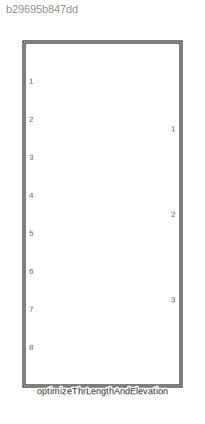
MODEL slx_b29695b847dd
KIND library
CONFIG AbsTol = auto
CONFIG EnableMultiTasking = off
CONFIG FixedStep = auto
CONFIG MaxStep = auto
CONFIG MinStep = auto
CONFIG RelTol = 1e-3
CONFIG SampleTimeConstraint = Unconstrained
CONFIG SolverName = VariableStepAuto
CONFIG StartTime = 0.0
CONFIG StopTime = 10.0
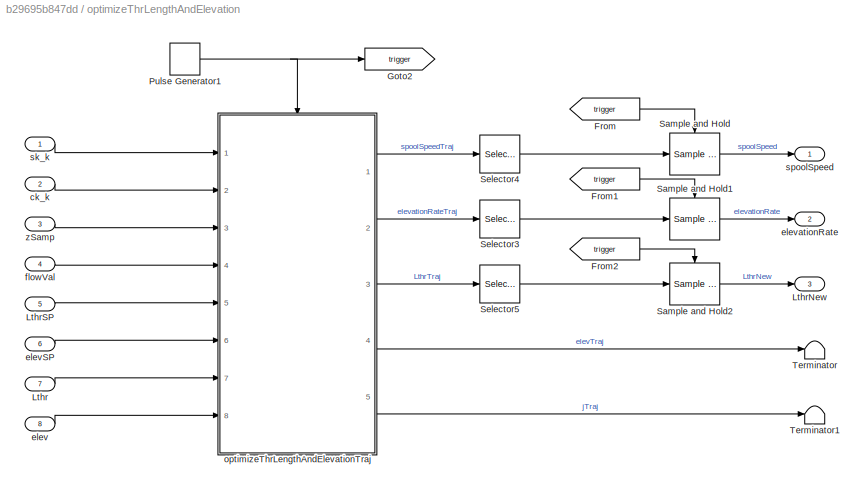
BLOCK [SubSystem] optimizeThrLengthAndElevation
  Ports = [8, 3]
  RequestExecContextInheritance = off
BLOCK [From] optimizeThrLengthAndElevation/From
  GotoTag = trigger
BLOCK [From] optimizeThrLengthAndElevation/From1
  GotoTag = trigger
BLOCK [From] optimizeThrLengthAndElevation/From2
  GotoTag = trigger
BLOCK [Goto] optimizeThrLengthAndElevation/Goto2
  GotoTag = trigger
BLOCK [Inport] optimizeThrLengthAndElevation/Lthr
  Port = 7
BLOCK [Outport] optimizeThrLengthAndElevation/LthrNew
  Port = 3
BLOCK [Inport] optimizeThrLengthAndElevation/LthrSP
  Port = 5
BLOCK [DiscretePulseGenerator] optimizeThrLengthAndElevation/Pulse Generator1
  Period = hiLvlCtrl.midLvlCtrl.dt*60
  PhaseDelay = hiLvlCtrl.mpckfgpTimeStep*60
  Ports = [0, 1]
  PulseType = Time based
BLOCK [Reference] optimizeThrLengthAndElevation/Sample and Hold  REF=dspsigops/Sample
and Hold
  Ports = [1, 1, 0, 1]
  SourceBlock = dspsigops/Sample\nand Hold
  SourceProductBaseCode = DS
  SourceType = Sample and Hold
BLOCK [Reference] optimizeThrLengthAndElevation/Sample and Hold1  REF=dspsigops/Sample
and Hold
  Ports = [1, 1, 0, 1]
  SourceBlock = dspsigops/Sample\nand Hold
  SourceProductBaseCode = DS
  SourceType = Sample and Hold
BLOCK [Reference] optimizeThrLengthAndElevation/Sample and Hold2  REF=dspsigops/Sample
and Hold
  Ports = [1, 1, 0, 1]
  SourceBlock = dspsigops/Sample\nand Hold
  SourceProductBaseCode = DS
  SourceType = Sample and Hold
BLOCK [Selector] optimizeThrLengthAndElevation/Selector3
  IndexOptions = Index vector (dialog)
  Indices = 1
  InputPortWidth = hiLvlCtrl.midLvlCtrl.predHorz
  OutputSizes = 1
  Ports = [1, 1]
BLOCK [Selector] optimizeThrLengthAndElevation/Selector4
  IndexOptions = Index vector (dialog)
  Indices = 1
  InputPortWidth = hiLvlCtrl.midLvlCtrl.predHorz
  OutputSizes = 1
  Ports = [1, 1]
BLOCK [Selector] optimizeThrLengthAndElevation/Selector5
  IndexOptions = Index vector (dialog)
  Indices = 1
  InputPortWidth = hiLvlCtrl.midLvlCtrl.predHorz
  OutputSizes = 1
  Ports = [1, 1]
BLOCK [Terminator] optimizeThrLengthAndElevation/Terminator
BLOCK [Terminator] optimizeThrLengthAndElevation/Terminator1
BLOCK [Inport] optimizeThrLengthAndElevation/ck_k
  Port = 2
BLOCK [Inport] optimizeThrLengthAndElevation/elev
  Port = 8
BLOCK [Inport] optimizeThrLengthAndElevation/elevSP
  Port = 6
BLOCK [Outport] optimizeThrLengthAndElevation/elevationRate
  Port = 2
BLOCK [Inport] optimizeThrLengthAndElevation/flowVal
  Port = 4
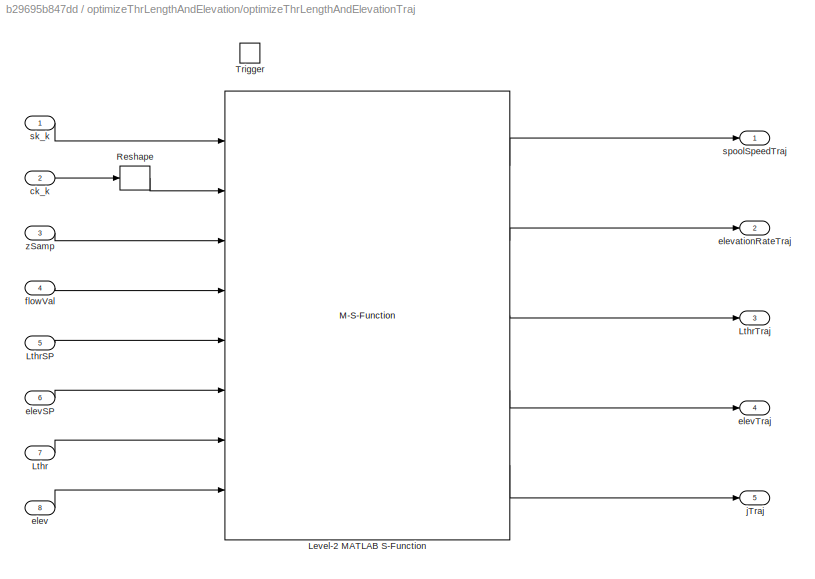
BLOCK [SubSystem] optimizeThrLengthAndElevation/optimizeThrLengthAndElevationTraj
  Ports = [8, 5, 0, 1]
  RequestExecContextInheritance = off
BLOCK [M-S-Function] optimizeThrLengthAndElevation/optimizeThrLengthAndElevationTraj/Level-2 MATLAB S-Function
  FunctionName = optimizeThrLenghtAndElevation_Lvl2sFun
  Parameters = midLvlKfgp,hiLvlCtrl
  Ports = [8, 5]
BLOCK [Inport] optimizeThrLengthAndElevation/optimizeThrLengthAndElevationTraj/Lthr
  Port = 7
BLOCK [Inport] optimizeThrLengthAndElevation/optimizeThrLengthAndElevationTraj/LthrSP
  Port = 5
BLOCK [Outport] optimizeThrLengthAndElevation/optimizeThrLengthAndElevationTraj/LthrTraj
  Port = 3
BLOCK [Reshape] optimizeThrLengthAndElevation/optimizeThrLengthAndElevationTraj/Reshape
  OutputDimensionality = Column vector (2-D)
  Ports = [1, 1]
BLOCK [TriggerPort] optimizeThrLengthAndElevation/optimizeThrLengthAndElevationTraj/Trigger
  Ports = []
  StatesWhenEnabling = held
  VariantControl = Variant
BLOCK [Inport] optimizeThrLengthAndElevation/optimizeThrLengthAndElevationTraj/ck_k
  Port = 2
BLOCK [Inport] optimizeThrLengthAndElevation/optimizeThrLengthAndElevationTraj/elev
  Port = 8
BLOCK [Inport] optimizeThrLengthAndElevation/optimizeThrLengthAndElevationTraj/elevSP
  Port = 6
BLOCK [Outport] optimizeThrLengthAndElevation/optimizeThrLengthAndElevationTraj/elevTraj
  Port = 4
BLOCK [Outport] optimizeThrLengthAndElevation/optimizeThrLengthAndElevationTraj/elevationRateTraj
  Port = 2
BLOCK [Inport] optimizeThrLengthAndElevation/optimizeThrLengthAndElevationTraj/flowVal
  Port = 4
BLOCK [Outport] optimizeThrLengthAndElevation/optimizeThrLengthAndElevationTraj/jTraj
  Port = 5
BLOCK [Inport] optimizeThrLengthAndElevation/optimizeThrLengthAndElevationTraj/sk_k
BLOCK [Outport] optimizeThrLengthAndElevation/optimizeThrLengthAndElevationTraj/spoolSpeedTraj
BLOCK [Inport] optimizeThrLengthAndElevation/optimizeThrLengthAndElevationTraj/zSamp
  Port = 3
BLOCK [Inport] optimizeThrLengthAndElevation/sk_k
BLOCK [Outport] optimizeThrLengthAndElevation/spoolSpeed
BLOCK [Inport] optimizeThrLengthAndElevation/zSamp
  Port = 3
LINE optimizeThrLengthAndElevation/From1:1 -> optimizeThrLengthAndElevation/Sample and Hold1:trigger
LINE optimizeThrLengthAndElevation/From2:1 -> optimizeThrLengthAndElevation/Sample and Hold2:trigger
LINE optimizeThrLengthAndElevation/From:1 -> optimizeThrLengthAndElevation/Sample and Hold:trigger
LINE optimizeThrLengthAndElevation/Lthr:1 -> optimizeThrLengthAndElevation/optimizeThrLengthAndElevationTraj:7
LINE optimizeThrLengthAndElevation/LthrSP:1 -> optimizeThrLengthAndElevation/optimizeThrLengthAndElevationTraj:5
NET optimizeThrLengthAndElevation/Pulse Generator1:1 -> optimizeThrLengthAndElevation/Goto2:1, optimizeThrLengthAndElevation/optimizeThrLengthAndElevationTraj:trigger
LINE optimizeThrLengthAndElevation/Sample and Hold1:1 -> optimizeThrLengthAndElevation/elevationRate:1
LINE optimizeThrLengthAndElevation/Sample and Hold2:1 -> optimizeThrLengthAndElevation/LthrNew:1
LINE optimizeThrLengthAndElevation/Sample and Hold:1 -> optimizeThrLengthAndElevation/spoolSpeed:1
LINE optimizeThrLengthAndElevation/Selector3:1 -> optimizeThrLengthAndElevation/Sample and Hold1:1
LINE optimizeThrLengthAndElevation/Selector4:1 -> optimizeThrLengthAndElevation/Sample and Hold:1
LINE optimizeThrLengthAndElevation/Selector5:1 -> optimizeThrLengthAndElevation/Sample and Hold2:1
LINE optimizeThrLengthAndElevation/ck_k:1 -> optimizeThrLengthAndElevation/optimizeThrLengthAndElevationTraj:2
LINE optimizeThrLengthAndElevation/elev:1 -> optimizeThrLengthAndElevation/optimizeThrLengthAndElevationTraj:8
LINE optimizeThrLengthAndElevation/elevSP:1 -> optimizeThrLengthAndElevation/optimizeThrLengthAndElevationTraj:6
LINE optimizeThrLengthAndElevation/flowVal:1 -> optimizeThrLengthAndElevation/optimizeThrLengthAndElevationTraj:4
LINE optimizeThrLengthAndElevation/optimizeThrLengthAndElevationTraj/Level-2 MATLAB S-Function:1 -> optimizeThrLengthAndElevation/optimizeThrLengthAndElevationTraj/spoolSpeedTraj:1
LINE optimizeThrLengthAndElevation/optimizeThrLengthAndElevationTraj/Level-2 MATLAB S-Function:2 -> optimizeThrLengthAndElevation/optimizeThrLengthAndElevationTraj/elevationRateTraj:1
LINE optimizeThrLengthAndElevation/optimizeThrLengthAndElevationTraj/Level-2 MATLAB S-Function:3 -> optimizeThrLengthAndElevation/optimizeThrLengthAndElevationTraj/LthrTraj:1
LINE optimizeThrLengthAndElevation/optimizeThrLengthAndElevationTraj/Level-2 MATLAB S-Function:4 -> optimizeThrLengthAndElevation/optimizeThrLengthAndElevationTraj/elevTraj:1
LINE optimizeThrLengthAndElevation/optimizeThrLengthAndElevationTraj/Level-2 MATLAB S-Function:5 -> optimizeThrLengthAndElevation/optimizeThrLengthAndElevationTraj/jTraj:1
LINE optimizeThrLengthAndElevation/optimizeThrLengthAndElevationTraj/Lthr:1 -> optimizeThrLengthAndElevation/optimizeThrLengthAndElevationTraj/Level-2 MATLAB S-Function:7
LINE optimizeThrLengthAndElevation/optimizeThrLengthAndElevationTraj/LthrSP:1 -> optimizeThrLengthAndElevation/optimizeThrLengthAndElevationTraj/Level-2 MATLAB S-Function:5
LINE optimizeThrLengthAndElevation/optimizeThrLengthAndElevationTraj/Reshape:1 -> optimizeThrLengthAndElevation/optimizeThrLengthAndElevationTraj/Level-2 MATLAB S-Function:2
LINE optimizeThrLengthAndElevation/optimizeThrLengthAndElevationTraj/ck_k:1 -> optimizeThrLengthAndElevation/optimizeThrLengthAndElevationTraj/Reshape:1
LINE optimizeThrLengthAndElevation/optimizeThrLengthAndElevationTraj/elev:1 -> optimizeThrLengthAndElevation/optimizeThrLengthAndElevationTraj/Level-2 MATLAB S-Function:8
LINE optimizeThrLengthAndElevation/optimizeThrLengthAndElevationTraj/elevSP:1 -> optimizeThrLengthAndElevation/optimizeThrLengthAndElevationTraj/Level-2 MATLAB S-Function:6
LINE optimizeThrLengthAndElevation/optimizeThrLengthAndElevationTraj/flowVal:1 -> optimizeThrLengthAndElevation/optimizeThrLengthAndElevationTraj/Level-2 MATLAB S-Function:4
LINE optimizeThrLengthAndElevation/optimizeThrLengthAndElevationTraj/sk_k:1 -> optimizeThrLengthAndElevation/optimizeThrLengthAndElevationTraj/Level-2 MATLAB S-Function:1
LINE optimizeThrLengthAndElevation/optimizeThrLengthAndElevationTraj/zSamp:1 -> optimizeThrLengthAndElevation/optimizeThrLengthAndElevationTraj/Level-2 MATLAB S-Function:3
LINE optimizeThrLengthAndElevation/optimizeThrLengthAndElevationTraj:1 -> optimizeThrLengthAndElevation/Selector4:1
LINE optimizeThrLengthAndElevation/optimizeThrLengthAndElevationTraj:2 -> optimizeThrLengthAndElevation/Selector3:1
LINE optimizeThrLengthAndElevation/optimizeThrLengthAndElevationTraj:3 -> optimizeThrLengthAndElevation/Selector5:1
LINE optimizeThrLengthAndElevation/optimizeThrLengthAndElevationTraj:4 -> optimizeThrLengthAndElevation/Terminator:1
LINE optimizeThrLengthAndElevation/optimizeThrLengthAndElevationTraj:5 -> optimizeThrLengthAndElevation/Terminator1:1
LINE optimizeThrLengthAndElevation/sk_k:1 -> optimizeThrLengthAndElevation/optimizeThrLengthAndElevationTraj:1
LINE optimizeThrLengthAndElevation/zSamp:1 -> optimizeThrLengthAndElevation/optimizeThrLengthAndElevationTraj:3
note: NET lines group one-source signal fan-out (src -> all destinations, sorted); 1:1 wires keep LINE
